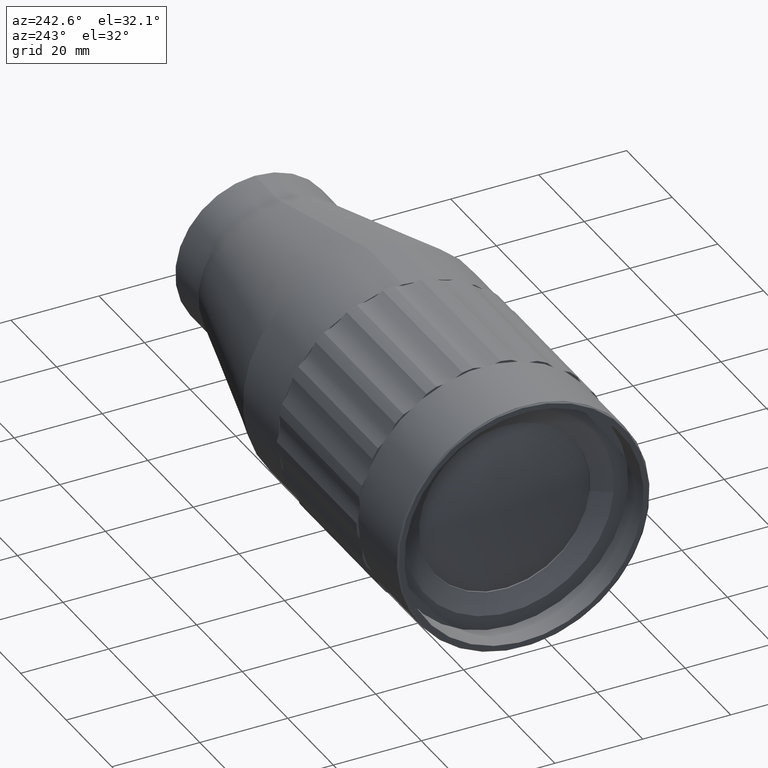
[diagram: clean part render]
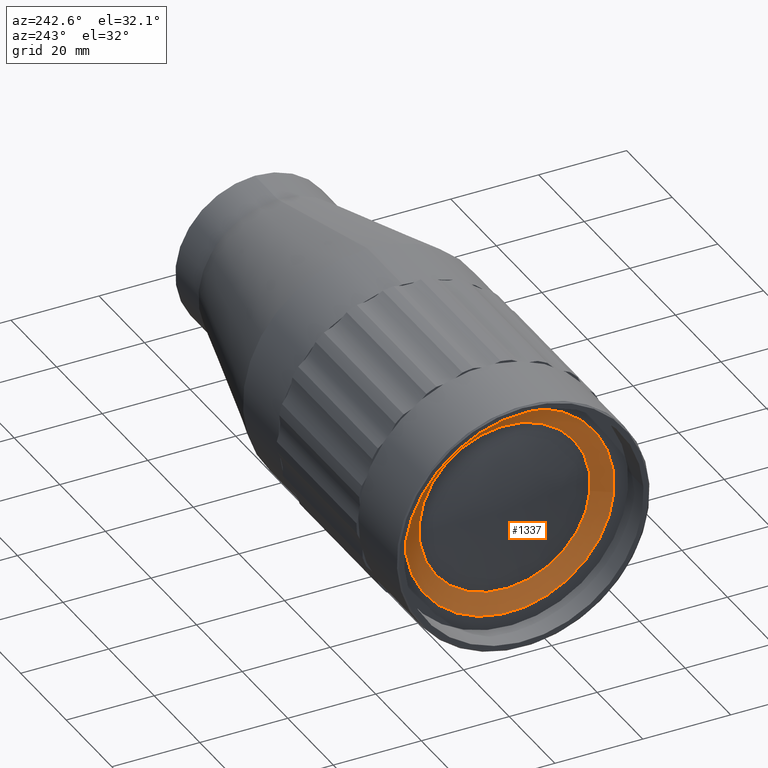
[diagram: same view with one face highlighted and labeled with its STEP entity id]
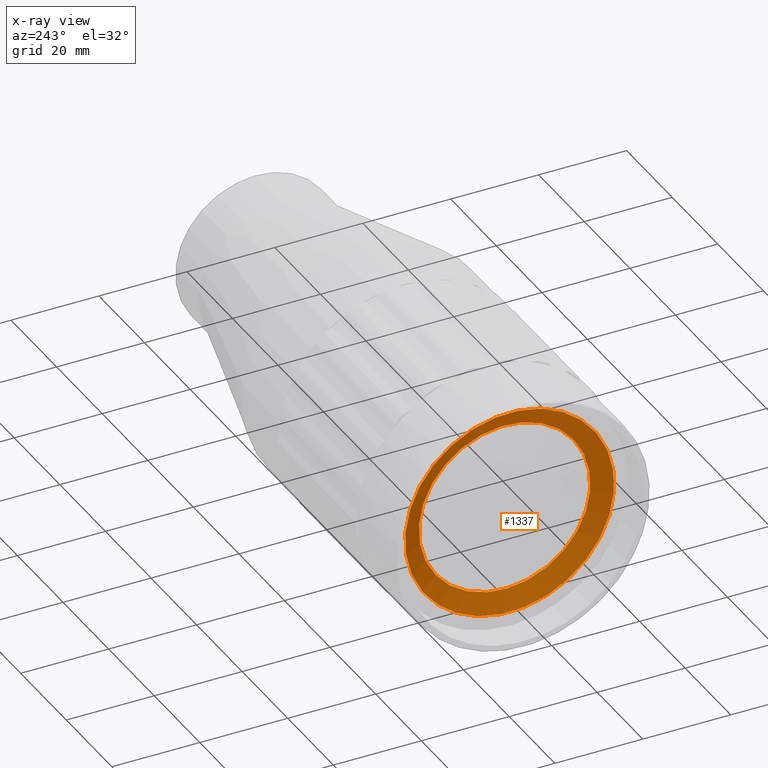
[diagram: x-ray of the same camera — body ghosted, the highlighted face saturated]
A machine part, auxiliary view. The second image highlights one B-rep face of the part: STEP entity #1337.
The next image is the same camera in x-ray: the body ghosted, the highlighted face saturated — about 0% of this face is hidden behind the body in this view.
In plain terms, the highlighted conical surface has half-angle 62.766 deg.
Its self-contained STEP definition (entity closure, byte-faithful):
#38 = AXIS2_PLACEMENT_3D ( 'NONE', #2479, #3866, #3544 ) ;
#50 = FACE_BOUND ( 'NONE', #3513, .T. ) ;
#132 = CARTESIAN_POINT ( 'NONE',  ( -55.56677595509128764, -16.44150710661570969, 126.9838044513625306 ) ) ;
#281 = EDGE_CURVE ( 'NONE', #1547, #1547, #1986, .T. ) ;
#373 = AXIS2_PLACEMENT_3D ( 'NONE', #1536, #1561, #1130 ) ;
#443 = DIRECTION ( 'NONE',  ( -1.000000000000000000, 0.000000000000000000, 0.000000000000000000 ) ) ;
#780 = FACE_OUTER_BOUND ( 'NONE', #3263, .T. ) ;
#1130 = DIRECTION ( 'NONE',  ( 0.000000000000000000, -0.9963975729819505300, -0.08480493237824536512 ) ) ;
#1337 = ADVANCED_FACE ( 'NONE', ( #50, #780 ), #1359, .F. ) ;
#1359 = CONICAL_SURFACE ( 'NONE', #373, 23.77450806333812849, 1.095474511136120821 ) ;
#1382 = AXIS2_PLACEMENT_3D ( 'NONE', #4386, #443, #2969 ) ;
#1536 = CARTESIAN_POINT ( 'NONE',  ( -55.56677595509128764, 7.247355026534216371, 128.9999999999999716 ) ) ;
#1547 = VERTEX_POINT ( 'NONE', #132 ) ;
#1549 = CIRCLE ( 'NONE', #38, 19.50000000000000355 ) ;
#1561 = DIRECTION ( 'NONE',  ( -1.000000000000000000, 0.000000000000000000, 0.000000000000000000 ) ) ;
#1662 = VERTEX_POINT ( 'NONE', #4272 ) ;
#1986 = CIRCLE ( 'NONE', #1382, 23.77450806333812849 ) ;
#2479 = CARTESIAN_POINT ( 'NONE',  ( -53.36677595509128480, 7.247355026534216371, 128.9999999999999716 ) ) ;
#2969 = DIRECTION ( 'NONE',  ( 0.000000000000000000, -0.9963975729819505300, -0.08480493237824536512 ) ) ;
#3250 = ORIENTED_EDGE ( 'NONE', *, *, #4394, .F. ) ;
#3263 = EDGE_LOOP ( 'NONE', ( #4102 ) ) ;
#3513 = EDGE_LOOP ( 'NONE', ( #3250 ) ) ;
#3544 = DIRECTION ( 'NONE',  ( 0.000000000000000000, -0.9963975729819504190, -0.08480493237824539288 ) ) ;
#3866 = DIRECTION ( 'NONE',  ( -1.000000000000000000, 0.000000000000000000, 0.000000000000000000 ) ) ;
#4102 = ORIENTED_EDGE ( 'NONE', *, *, #281, .T. ) ;
#4272 = CARTESIAN_POINT ( 'NONE',  ( -53.36677595509128480, -12.18239764661382196, 127.3463038186241931 ) ) ;
#4386 = CARTESIAN_POINT ( 'NONE',  ( -55.56677595509128764, 7.247355026534216371, 128.9999999999999716 ) ) ;
#4394 = EDGE_CURVE ( 'NONE', #1662, #1662, #1549, .T. ) ;